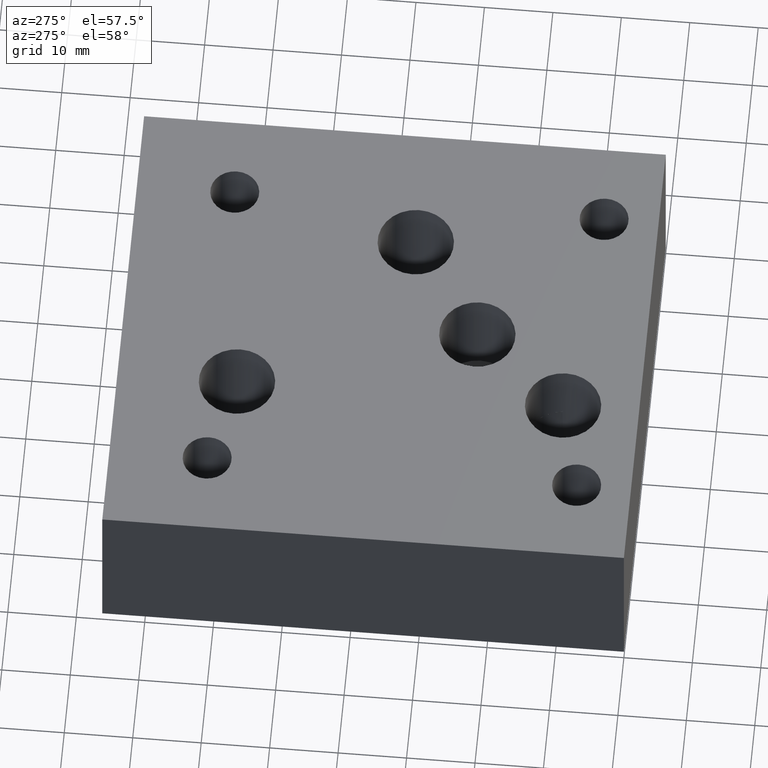
[diagram: clean part render]
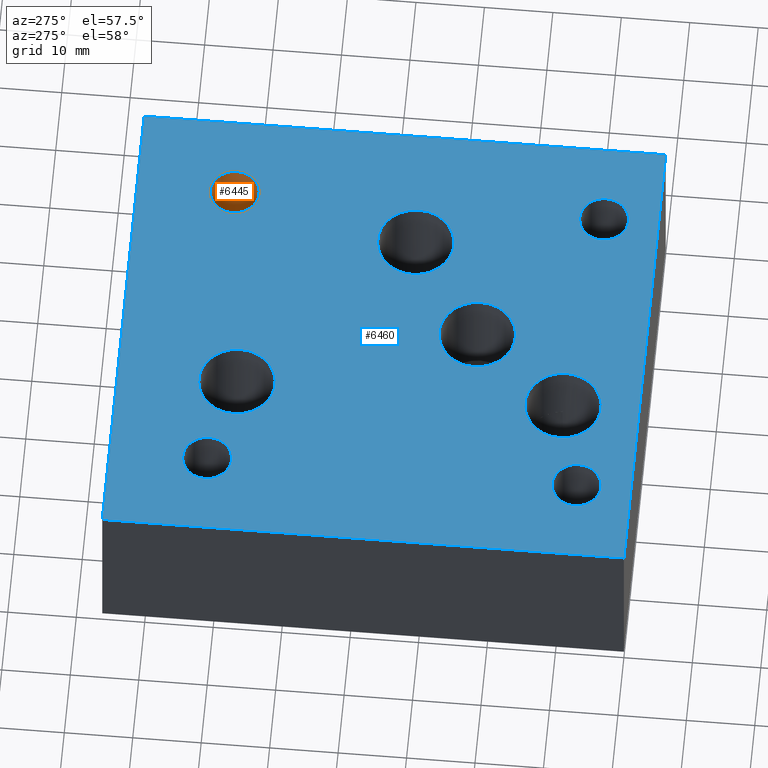
[diagram: same view with the hole feature highlighted: cylindrical wall and planar end face, labeled with their STEP entity ids]
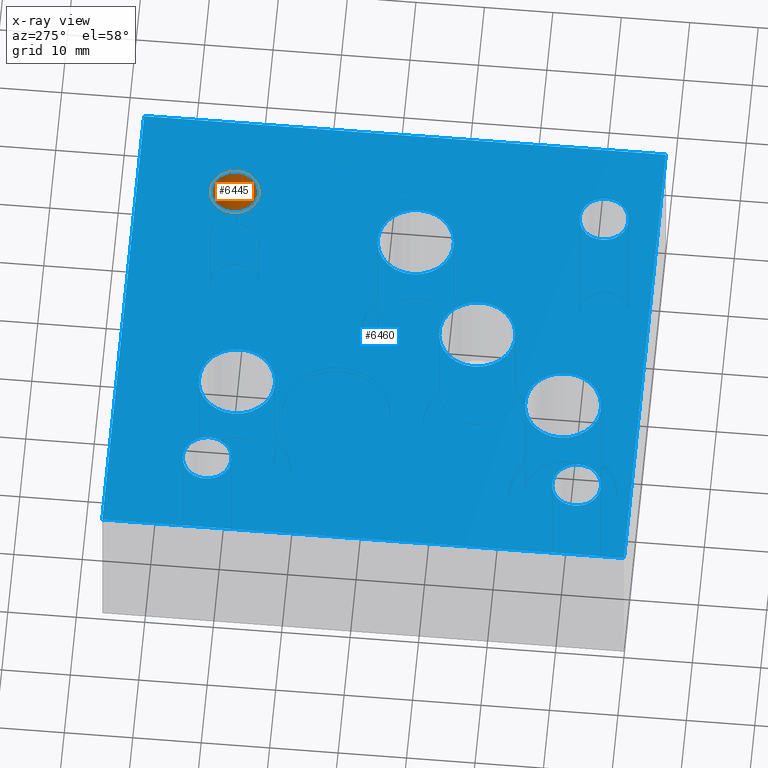
[diagram: x-ray of the same camera — body ghosted, the hole faces saturated]
A machine part, auxiliary view. The highlighted faces form one hole feature of diameter 7.1374 mm: the cylindrical wall (entity #6445, orange) and its adjacent planar end face (entity #6460, blue) — they share a circular edge in the B-rep.
The next image is the same camera in x-ray (body ghosted, the hole faces saturated) — the bore reads through the body.
Wall:
#66=CIRCLE('',#6759,3.5687);
#67=CIRCLE('',#6760,3.5687);
#68=CIRCLE('',#6761,3.5687);
#69=CIRCLE('',#6762,3.5687);
#97=CYLINDRICAL_SURFACE('',#6758,3.5687);
#279=B_SPLINE_CURVE_WITH_KNOTS('',3,(#10699,#10700,#10701,#10702,#10703,
#10704,#10705,#10706,#10707,#10708,#10709,#10710,#10711,#10712,#10713,#10714,
#10715,#10716,#10717,#10718,#10719,#10720,#10721),.UNSPECIFIED.,.F.,.F.,
(4,2,2,2,2,2,2,2,2,3,4),(-1.07351170403503,-1.0728768992817,-0.938635133377274,
-0.804393367472847,-0.670415908556849,-0.536438449640851,-0.402460990724853,
-0.268483531808855,-0.134241765904428,0.,0.000634804753326885),
 .UNSPECIFIED.);
#649=FACE_OUTER_BOUND('',#996,.T.);
#996=EDGE_LOOP('',(#5525,#5526,#5527,#5528,#5529,#5530,#5531,#5532,#5533));
#1692=LINE('',#10732,#2375);
#1693=LINE('',#10752,#2376);
#1698=LINE('',#10826,#2381);
#2375=VECTOR('',#8003,10.);
#2376=VECTOR('',#8004,10.);
#2381=VECTOR('',#8035,3.5687);
#2952=VERTEX_POINT('',#10697);
#2953=VERTEX_POINT('',#10698);
#2957=VERTEX_POINT('',#10731);
#2958=VERTEX_POINT('',#10733);
#2969=VERTEX_POINT('',#10821);
#2970=VERTEX_POINT('',#10822);
#2971=VERTEX_POINT('',#10825);
#3816=EDGE_CURVE('',#2952,#2953,#279,.T.);
#3822=EDGE_CURVE('',#2957,#2952,#1692,.T.);
#3824=EDGE_CURVE('',#2953,#2958,#1693,.T.);
#3839=EDGE_CURVE('',#2969,#2970,#66,.T.);
#3840=EDGE_CURVE('',#2970,#2969,#67,.T.);
#3841=EDGE_CURVE('',#2970,#2971,#1698,.T.);
#3842=EDGE_CURVE('',#2957,#2971,#68,.T.);
#3843=EDGE_CURVE('',#2971,#2958,#69,.T.);
#5525=ORIENTED_EDGE('',*,*,#3839,.F.);
#5526=ORIENTED_EDGE('',*,*,#3840,.F.);
#5527=ORIENTED_EDGE('',*,*,#3841,.T.);
#5528=ORIENTED_EDGE('',*,*,#3842,.F.);
#5529=ORIENTED_EDGE('',*,*,#3822,.T.);
#5530=ORIENTED_EDGE('',*,*,#3816,.T.);
#5531=ORIENTED_EDGE('',*,*,#3824,.T.);
#5532=ORIENTED_EDGE('',*,*,#3843,.F.);
#5533=ORIENTED_EDGE('',*,*,#3841,.F.);
#6445=ADVANCED_FACE('',(#649),#97,.F.);
#6758=AXIS2_PLACEMENT_3D('',#10820,#8029,#8030);
#6759=AXIS2_PLACEMENT_3D('',#10823,#8031,#8032);
#6760=AXIS2_PLACEMENT_3D('',#10824,#8033,#8034);
#6761=AXIS2_PLACEMENT_3D('',#10827,#8036,#8037);
#6762=AXIS2_PLACEMENT_3D('',#10828,#8038,#8039);
#8003=DIRECTION('',(0.,0.,1.));
#8004=DIRECTION('',(0.,0.,-1.));
#8029=DIRECTION('center_axis',(0.,0.,1.));
#8030=DIRECTION('ref_axis',(1.,0.,0.));
#8031=DIRECTION('center_axis',(0.,0.,-1.));
#8032=DIRECTION('ref_axis',(1.,0.,0.));
#8033=DIRECTION('center_axis',(0.,0.,-1.));
#8034=DIRECTION('ref_axis',(1.,0.,0.));
#8035=DIRECTION('',(0.,0.,-1.));
#8036=DIRECTION('center_axis',(0.,0.,1.));
#8037=DIRECTION('ref_axis',(1.,0.,0.));
#8038=DIRECTION('center_axis',(0.,0.,1.));
#8039=DIRECTION('ref_axis',(1.,0.,0.));
#10697=CARTESIAN_POINT('',(54.3941056494707,61.93155,14.224));
#10698=CARTESIAN_POINT('',(61.5314943505293,61.93155,14.224));
#10699=CARTESIAN_POINT('Ctrl Pts',(54.3941056494707,61.93155,14.224));
#10700=CARTESIAN_POINT('Ctrl Pts',(54.394109416973,61.9336673329553,14.2240043503301));
#10701=CARTESIAN_POINT('Ctrl Pts',(54.3941150676467,61.9357840020211,14.2240086993099));
#10702=CARTESIAN_POINT('Ctrl Pts',(54.3957150235894,62.38536877501,14.2249324343041));
#10703=CARTESIAN_POINT('Ctrl Pts',(54.4867182726586,62.862388134376,14.2259132161892));
#10704=CARTESIAN_POINT('Ctrl Pts',(54.85311134987,63.73939466255,14.2277176033338));
#10705=CARTESIAN_POINT('Ctrl Pts',(55.128501183584,64.1393818291024,14.2285411734256));
#10706=CARTESIAN_POINT('Ctrl Pts',(55.7622884117804,64.7699868133754,14.2298401043734));
#10707=CARTESIAN_POINT('Ctrl Pts',(56.1627874035994,65.0429864278809,14.2304027568596));
#10708=CARTESIAN_POINT('Ctrl Pts',(57.0397474316697,65.4049430240146,14.2311488965259));
#10709=CARTESIAN_POINT('Ctrl Pts',(57.51620847028,65.4939,14.2313323484187));
#10710=CARTESIAN_POINT('Ctrl Pts',(58.40939152972,65.4939,14.2313323484187));
#10711=CARTESIAN_POINT('Ctrl Pts',(58.8858525683303,65.4049430240146,14.2311488965259));
#10712=CARTESIAN_POINT('Ctrl Pts',(59.7628125964006,65.0429864278809,14.2304027568596));
#10713=CARTESIAN_POINT('Ctrl Pts',(60.1633115882196,64.7699868133754,14.2298401043734));
#10714=CARTESIAN_POINT('Ctrl Pts',(60.797098816416,64.1393818291024,14.2285411734256));
#10715=CARTESIAN_POINT('Ctrl Pts',(61.07248865013,63.73939466255,14.2277176033338));
#10716=CARTESIAN_POINT('Ctrl Pts',(61.4388817273414,62.862388134376,14.2259132161892));
#10717=CARTESIAN_POINT('Ctrl Pts',(61.5298849764106,62.38536877501,14.2249324343041));
#10718=CARTESIAN_POINT('Ctrl Pts',(61.5314774020637,61.9379,14.2240130469246));
#10719=CARTESIAN_POINT('Ctrl Pts',(61.5314849323533,61.9357840020211,14.2240086993099));
#10720=CARTESIAN_POINT('Ctrl Pts',(61.531490583027,61.9336673329553,14.2240043503301));
#10721=CARTESIAN_POINT('Ctrl Pts',(61.5314943505293,61.93155,14.224));
#10731=CARTESIAN_POINT('',(54.3941056494707,61.93155,11.176));
#10732=CARTESIAN_POINT('',(54.3941056494707,61.93155,7.112));
#10733=CARTESIAN_POINT('',(61.5314943505293,61.93155,11.176));
#10752=CARTESIAN_POINT('',(61.5314943505293,61.93155,7.112));
#10820=CARTESIAN_POINT('Origin',(57.9628,61.9252,18.288));
#10821=CARTESIAN_POINT('',(61.5315,61.9252,25.4));
#10822=CARTESIAN_POINT('',(54.3941,61.9252,25.4));
#10823=CARTESIAN_POINT('Origin',(57.9628,61.9252,25.4));
#10824=CARTESIAN_POINT('Origin',(57.9628,61.9252,25.4));
#10825=CARTESIAN_POINT('',(54.3941,61.9252,11.176));
#10826=CARTESIAN_POINT('',(54.3941,61.9252,18.288));
#10827=CARTESIAN_POINT('Origin',(57.9628,61.9252,11.176));
#10828=CARTESIAN_POINT('Origin',(57.9628,61.9252,11.176));
End face:
#48=CIRCLE('',#6733,5.55625);
#49=CIRCLE('',#6734,5.55625);
#62=CIRCLE('',#6754,3.5687);
#63=CIRCLE('',#6755,3.5687);
#66=CIRCLE('',#6759,3.5687);
#67=CIRCLE('',#6760,3.5687);
#70=CIRCLE('',#6764,3.5687);
#71=CIRCLE('',#6765,3.5687);
#76=CIRCLE('',#6773,5.5626);
#77=CIRCLE('',#6774,5.5626);
#78=CIRCLE('',#6776,5.5626);
#79=CIRCLE('',#6777,5.5626);
#80=CIRCLE('',#6779,5.5626);
#81=CIRCLE('',#6780,5.5626);
#82=CIRCLE('',#6783,3.5687);
#83=CIRCLE('',#6784,3.5687);
#131=FACE_BOUND('',#1012,.T.);
#132=FACE_BOUND('',#1013,.T.);
#133=FACE_BOUND('',#1014,.T.);
#134=FACE_BOUND('',#1015,.T.);
#135=FACE_BOUND('',#1016,.T.);
#136=FACE_BOUND('',#1017,.T.);
#137=FACE_BOUND('',#1018,.T.);
#138=FACE_BOUND('',#1019,.T.);
#664=FACE_OUTER_BOUND('',#1011,.T.);
#1011=EDGE_LOOP('',(#5596,#5597,#5598,#5599));
#1012=EDGE_LOOP('',(#5600,#5601));
#1013=EDGE_LOOP('',(#5602,#5603));
#1014=EDGE_LOOP('',(#5604,#5605));
#1015=EDGE_LOOP('',(#5606,#5607));
#1016=EDGE_LOOP('',(#5608,#5609));
#1017=EDGE_LOOP('',(#5610,#5611));
#1018=EDGE_LOOP('',(#5612,#5613));
#1019=EDGE_LOOP('',(#5614,#5615));
#1300=LINE('',#9605,#1983);
#1707=LINE('',#10884,#2390);
#1710=LINE('',#10888,#2393);
#1712=LINE('',#10892,#2395);
#1983=VECTOR('',#7227,10.);
#2390=VECTOR('',#8102,10.);
#2393=VECTOR('',#8107,10.);
#2395=VECTOR('',#8113,10.);
#2650=VERTEX_POINT('',#9602);
#2651=VERTEX_POINT('',#9604);
#2943=VERTEX_POINT('',#10633);
#2944=VERTEX_POINT('',#10634);
#2966=VERTEX_POINT('',#10812);
#2967=VERTEX_POINT('',#10813);
#2969=VERTEX_POINT('',#10821);
#2970=VERTEX_POINT('',#10822);
#2972=VERTEX_POINT('',#10830);
#2973=VERTEX_POINT('',#10831);
#2978=VERTEX_POINT('',#10847);
#2979=VERTEX_POINT('',#10848);
#2980=VERTEX_POINT('',#10853);
#2981=VERTEX_POINT('',#10854);
#2982=VERTEX_POINT('',#10859);
#2983=VERTEX_POINT('',#10860);
#2984=VERTEX_POINT('',#10866);
#2985=VERTEX_POINT('',#10867);
#2990=VERTEX_POINT('',#10881);
#2991=VERTEX_POINT('',#10883);
#3372=EDGE_CURVE('',#2651,#2650,#1300,.T.);
#3803=EDGE_CURVE('',#2943,#2944,#48,.T.);
#3804=EDGE_CURVE('',#2944,#2943,#49,.T.);
#3834=EDGE_CURVE('',#2966,#2967,#62,.T.);
#3835=EDGE_CURVE('',#2967,#2966,#63,.T.);
#3839=EDGE_CURVE('',#2969,#2970,#66,.T.);
#3840=EDGE_CURVE('',#2970,#2969,#67,.T.);
#3844=EDGE_CURVE('',#2972,#2973,#70,.T.);
#3845=EDGE_CURVE('',#2973,#2972,#71,.T.);
#3852=EDGE_CURVE('',#2978,#2979,#76,.T.);
#3853=EDGE_CURVE('',#2979,#2978,#77,.T.);
#3855=EDGE_CURVE('',#2980,#2981,#78,.T.);
#3856=EDGE_CURVE('',#2981,#2980,#79,.T.);
#3858=EDGE_CURVE('',#2982,#2983,#80,.T.);
#3859=EDGE_CURVE('',#2983,#2982,#81,.T.);
#3861=EDGE_CURVE('',#2984,#2985,#82,.T.);
#3862=EDGE_CURVE('',#2985,#2984,#83,.T.);
#3868=EDGE_CURVE('',#2991,#2990,#1707,.T.);
#3871=EDGE_CURVE('',#2650,#2991,#1710,.T.);
#3873=EDGE_CURVE('',#2990,#2651,#1712,.T.);
#5596=ORIENTED_EDGE('',*,*,#3873,.T.);
#5597=ORIENTED_EDGE('',*,*,#3372,.T.);
#5598=ORIENTED_EDGE('',*,*,#3871,.T.);
#5599=ORIENTED_EDGE('',*,*,#3868,.T.);
#5600=ORIENTED_EDGE('',*,*,#3803,.T.);
#5601=ORIENTED_EDGE('',*,*,#3804,.T.);
#5602=ORIENTED_EDGE('',*,*,#3852,.T.);
#5603=ORIENTED_EDGE('',*,*,#3853,.T.);
#5604=ORIENTED_EDGE('',*,*,#3855,.T.);
#5605=ORIENTED_EDGE('',*,*,#3856,.T.);
#5606=ORIENTED_EDGE('',*,*,#3858,.T.);
#5607=ORIENTED_EDGE('',*,*,#3859,.T.);
#5608=ORIENTED_EDGE('',*,*,#3834,.T.);
#5609=ORIENTED_EDGE('',*,*,#3835,.T.);
#5610=ORIENTED_EDGE('',*,*,#3861,.T.);
#5611=ORIENTED_EDGE('',*,*,#3862,.T.);
#5612=ORIENTED_EDGE('',*,*,#3839,.T.);
#5613=ORIENTED_EDGE('',*,*,#3840,.T.);
#5614=ORIENTED_EDGE('',*,*,#3844,.T.);
#5615=ORIENTED_EDGE('',*,*,#3845,.T.);
#5866=PLANE('',#6793);
#6460=ADVANCED_FACE('',(#664,#131,#132,#133,#134,#135,#136,#137,#138),#5866,
 .T.);
#6733=AXIS2_PLACEMENT_3D('',#10635,#7968,#7969);
#6734=AXIS2_PLACEMENT_3D('',#10636,#7970,#7971);
#6754=AXIS2_PLACEMENT_3D('',#10814,#8020,#8021);
#6755=AXIS2_PLACEMENT_3D('',#10815,#8022,#8023);
#6759=AXIS2_PLACEMENT_3D('',#10823,#8031,#8032);
#6760=AXIS2_PLACEMENT_3D('',#10824,#8033,#8034);
#6764=AXIS2_PLACEMENT_3D('',#10832,#8042,#8043);
#6765=AXIS2_PLACEMENT_3D('',#10833,#8044,#8045);
#6773=AXIS2_PLACEMENT_3D('',#10849,#8062,#8063);
#6774=AXIS2_PLACEMENT_3D('',#10850,#8064,#8065);
#6776=AXIS2_PLACEMENT_3D('',#10855,#8069,#8070);
#6777=AXIS2_PLACEMENT_3D('',#10856,#8071,#8072);
#6779=AXIS2_PLACEMENT_3D('',#10861,#8076,#8077);
#6780=AXIS2_PLACEMENT_3D('',#10862,#8078,#8079);
#6783=AXIS2_PLACEMENT_3D('',#10868,#8085,#8086);
#6784=AXIS2_PLACEMENT_3D('',#10869,#8087,#8088);
#6793=AXIS2_PLACEMENT_3D('',#10893,#8114,#8115);
#7227=DIRECTION('',(0.,1.,0.));
#7968=DIRECTION('center_axis',(0.,0.,-1.));
#7969=DIRECTION('ref_axis',(1.,0.,0.));
#7970=DIRECTION('center_axis',(0.,0.,-1.));
#7971=DIRECTION('ref_axis',(1.,0.,0.));
#8020=DIRECTION('center_axis',(0.,0.,-1.));
#8021=DIRECTION('ref_axis',(1.,0.,0.));
#8022=DIRECTION('center_axis',(0.,0.,-1.));
#8023=DIRECTION('ref_axis',(1.,0.,0.));
#8031=DIRECTION('center_axis',(0.,0.,-1.));
#8032=DIRECTION('ref_axis',(1.,0.,0.));
#8033=DIRECTION('center_axis',(0.,0.,-1.));
#8034=DIRECTION('ref_axis',(1.,0.,0.));
#8042=DIRECTION('center_axis',(0.,0.,-1.));
#8043=DIRECTION('ref_axis',(1.,0.,0.));
#8044=DIRECTION('center_axis',(0.,0.,-1.));
#8045=DIRECTION('ref_axis',(1.,0.,0.));
#8062=DIRECTION('center_axis',(0.,0.,-1.));
#8063=DIRECTION('ref_axis',(1.,0.,0.));
#8064=DIRECTION('center_axis',(0.,0.,-1.));
#8065=DIRECTION('ref_axis',(1.,0.,0.));
#8069=DIRECTION('center_axis',(0.,0.,-1.));
#8070=DIRECTION('ref_axis',(1.,0.,0.));
#8071=DIRECTION('center_axis',(0.,0.,-1.));
#8072=DIRECTION('ref_axis',(1.,0.,0.));
#8076=DIRECTION('center_axis',(0.,0.,-1.));
#8077=DIRECTION('ref_axis',(1.,0.,0.));
#8078=DIRECTION('center_axis',(0.,0.,-1.));
#8079=DIRECTION('ref_axis',(1.,0.,0.));
#8085=DIRECTION('center_axis',(0.,0.,-1.));
#8086=DIRECTION('ref_axis',(1.,0.,0.));
#8087=DIRECTION('center_axis',(0.,0.,-1.));
#8088=DIRECTION('ref_axis',(1.,0.,0.));
#8102=DIRECTION('',(0.,-1.,0.));
#8107=DIRECTION('',(-1.,0.,0.));
#8113=DIRECTION('',(1.,0.,0.));
#8114=DIRECTION('center_axis',(0.,0.,1.));
#8115=DIRECTION('ref_axis',(1.,0.,0.));
#9602=CARTESIAN_POINT('',(69.85,76.2,25.4));
#9604=CARTESIAN_POINT('',(69.85,0.,25.4));
#9605=CARTESIAN_POINT('',(69.85,0.,25.4));
#10633=CARTESIAN_POINT('',(30.98927,11.1125,25.4));
#10634=CARTESIAN_POINT('',(19.87677,11.1125,25.4));
#10635=CARTESIAN_POINT('Origin',(25.43302,11.1125,25.4));
#10636=CARTESIAN_POINT('Origin',(25.43302,11.1125,25.4));
#10812=CARTESIAN_POINT('',(61.5315,7.9629,25.4));
#10813=CARTESIAN_POINT('',(54.3941,7.9629,25.4));
#10814=CARTESIAN_POINT('Origin',(57.9628,7.9629,25.4));
#10815=CARTESIAN_POINT('Origin',(57.9628,7.9629,25.4));
#10821=CARTESIAN_POINT('',(61.5315,61.9252,25.4));
#10822=CARTESIAN_POINT('',(54.3941,61.9252,25.4));
#10823=CARTESIAN_POINT('Origin',(57.9628,61.9252,25.4));
#10824=CARTESIAN_POINT('Origin',(57.9628,61.9252,25.4));
#10830=CARTESIAN_POINT('',(15.4813,7.9502,25.4));
#10831=CARTESIAN_POINT('',(8.3439,7.9502,25.4));
#10832=CARTESIAN_POINT('Origin',(11.9126,7.9502,25.4));
#10833=CARTESIAN_POINT('Origin',(11.9126,7.9502,25.4));
#10847=CARTESIAN_POINT('',(42.10558,24.60752,25.4));
#10848=CARTESIAN_POINT('',(30.98038,24.60752,25.4));
#10849=CARTESIAN_POINT('Origin',(36.54298,24.60752,25.4));
#10850=CARTESIAN_POINT('Origin',(36.54298,24.60752,25.4));
#10853=CARTESIAN_POINT('',(57.2008,34.925,25.4));
#10854=CARTESIAN_POINT('',(46.0756,34.925,25.4));
#10855=CARTESIAN_POINT('Origin',(51.6382,34.925,25.4));
#10856=CARTESIAN_POINT('Origin',(51.6382,34.925,25.4));
#10859=CARTESIAN_POINT('',(30.988,58.7502,25.4));
#10860=CARTESIAN_POINT('',(19.8628,58.7502,25.4));
#10861=CARTESIAN_POINT('Origin',(25.4254,58.7502,25.4));
#10862=CARTESIAN_POINT('Origin',(25.4254,58.7502,25.4));
#10866=CARTESIAN_POINT('',(15.4813,61.9252,25.4));
#10867=CARTESIAN_POINT('',(8.3439,61.9252,25.4));
#10868=CARTESIAN_POINT('Origin',(11.9126,61.9252,25.4));
#10869=CARTESIAN_POINT('Origin',(11.9126,61.9252,25.4));
#10881=CARTESIAN_POINT('',(0.,0.,25.4));
#10883=CARTESIAN_POINT('',(0.,76.2,25.4));
#10884=CARTESIAN_POINT('',(0.,76.2,25.4));
#10888=CARTESIAN_POINT('',(69.85,76.2,25.4));
#10892=CARTESIAN_POINT('',(0.,0.,25.4));
#10893=CARTESIAN_POINT('Origin',(34.925,38.1,25.4));